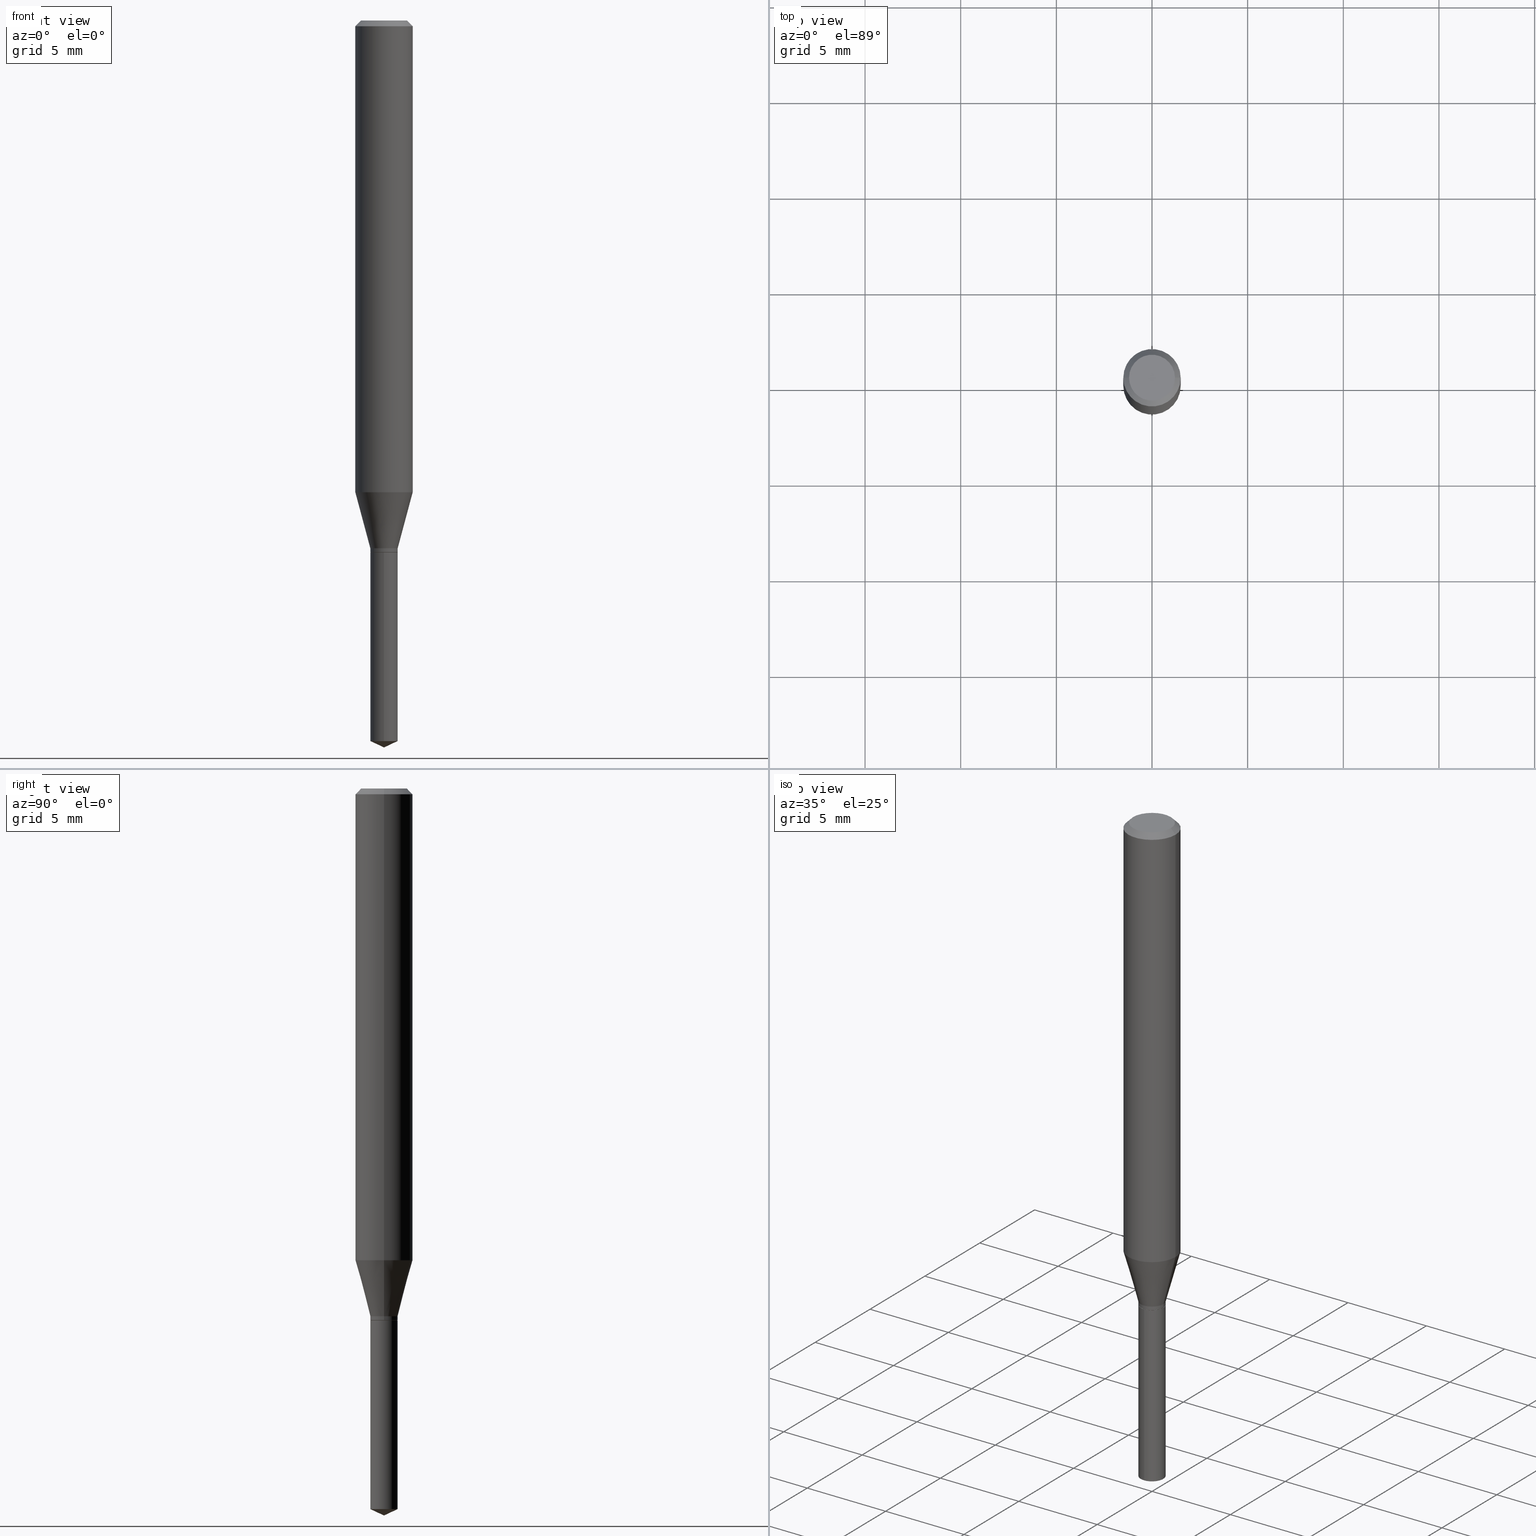
[diagram: canonical four-view strip — front | top / right | iso, engineering-drawing reading convention]
A machine part, canonical four-view strip (front | top / right | iso — engineering-drawing reading convention). The complete STEP part file that produces these views, byte-faithful:
ISO-10303-21;
HEADER;
FILE_DESCRIPTION (( 'STEP AP203' ),
    '1' );
FILE_NAME ('07876.STEP',
    '2024-04-24T05:06:22',
    ( '' ),
    ( '' ),
    'SwSTEP 2.0',
    'SolidWorks 2023',
    '' );
FILE_SCHEMA (( 'CONFIG_CONTROL_DESIGN' ));
ENDSEC;

DATA;
#1 = FACE_OUTER_BOUND ( 'NONE', #385, .T. ) ;
#2 = ORIENTED_EDGE ( 'NONE', *, *, #157, .F. ) ;
#3 = APPROVAL_DATE_TIME ( #406, #96 ) ;
#4 = LINE ( 'NONE', #378, #204 ) ;
#5 = ORIENTED_EDGE ( 'NONE', *, *, #387, .F. ) ;
#6 = CARTESIAN_POINT ( 'NONE',  ( -1.965703993768416296E-16, -0.02815000000000382127, -1.094499999999999806 ) ) ;
#7 = VERTEX_POINT ( 'NONE', #395 ) ;
#8 = CIRCLE ( 'NONE', #301, 0.02815000000000000141 ) ;
#9 = CARTESIAN_POINT ( 'NONE',  ( -0.02764999999999999750, -3.622312031752044209E-15, -1.094500000000000028 ) ) ;
#10 = ORIENTED_EDGE ( 'NONE', *, *, #49, .F. ) ;
#11 = CARTESIAN_POINT ( 'NONE',  ( 2.676565608369631794E-29, -3.821426325363822773E-15, -1.094499999999999806 ) ) ;
#12 = ORIENTED_EDGE ( 'NONE', *, *, #421, .F. ) ;
#13 = CIRCLE ( 'NONE', #294, 0.02815000000000000141 ) ;
#14 = FACE_OUTER_BOUND ( 'NONE', #84, .T. ) ;
#15 = ORIENTED_EDGE ( 'NONE', *, *, #127, .F. ) ;
#16 = ADVANCED_FACE ( 'NONE', ( #169 ), #321, .T. ) ;
#17 = EDGE_LOOP ( 'NONE', ( #115, #308, #153, #80 ) ) ;
#18 = VECTOR ( 'NONE', #484, 39.37007874015748143 ) ;
#19 = PRODUCT_DEFINITION_FORMATION_WITH_SPECIFIED_SOURCE ( 'ANY', '', #394, .NOT_KNOWN. ) ;
#20 = ORIENTED_EDGE ( 'NONE', *, *, #387, .T. ) ;
#21 =( NAMED_UNIT ( * ) PLANE_ANGLE_UNIT ( ) SI_UNIT ( $, .RADIAN. ) );
#22 = EDGE_CURVE ( 'NONE', #424, #7, #210, .T. ) ;
#23 = DIRECTION ( 'NONE',  ( 1.000000000000000000, -6.982962677686265133E-15, 0.000000000000000000 ) ) ;
#24 = DIRECTION ( 'NONE',  ( -2.445468806185136597E-29, 3.491481338843145583E-15, 1.000000000000000000 ) ) ;
#25 = DIRECTION ( 'NONE',  ( 1.000000000000000000, -6.982962677686266711E-15, 4.876176775795935793E-29 ) ) ;
#26 = APPROVAL_STATUS ( 'not_yet_approved' ) ;
#27 = CONICAL_SURFACE ( 'NONE', #309, 84.42940631927488937, 1.134464013796318449 ) ;
#28 = CONICAL_SURFACE ( 'NONE', #448, 0.02815000000000000141, 0.2617993877991500740 ) ;
#29 = CARTESIAN_POINT ( 'NONE',  ( -1.099042290321477455E-29, -9.228311730545623484E-15, -1.094500000000000028 ) ) ;
#30 = PERSON_AND_ORGANIZATION ( #429, #271 ) ;
#31 = CARTESIAN_POINT ( 'NONE',  ( 0.02815000000000000141, -3.988668281494408337E-15, -1.086099999999999843 ) ) ;
#32 = APPROVAL_ROLE ( '' ) ;
#33 = DIRECTION ( 'NONE',  ( 0.2588190451025213501, 1.565188264969621968E-15, 0.9659258262890682012 ) ) ;
#34 = DIRECTION ( 'NONE',  ( -6.982962677686265133E-15, -1.000000000000000000, 4.852305494963167470E-15 ) ) ;
#35 = AXIS2_PLACEMENT_3D ( 'NONE', #364, #219, #487 ) ;
#36 = VECTOR ( 'NONE', #455, 39.37007874015748143 ) ;
#37 = DIRECTION ( 'NONE',  ( -2.445468806185136597E-29, 3.491481338843145583E-15, 1.000000000000000000 ) ) ;
#38 = EDGE_CURVE ( 'NONE', #343, #150, #285, .T. ) ;
#39 = ORIENTED_EDGE ( 'NONE', *, *, #201, .T. ) ;
#40 = DATE_AND_TIME ( #229, #124 ) ;
#41 = FACE_OUTER_BOUND ( 'NONE', #358, .T. ) ;
#42 = EDGE_LOOP ( 'NONE', ( #375, #377, #39, #393 ) ) ;
#43 = DIRECTION ( 'NONE',  ( -6.982962677686267499E-15, -1.000000000000000000, 3.520397390770430993E-15 ) ) ;
#44 = ORIENTED_EDGE ( 'NONE', *, *, #392, .F. ) ;
#45 = CLOSED_SHELL ( 'NONE', ( #16, #173, #481, #63, #99, #477, #278, #164, #60, #194, #141, #89 ) ) ;
#46 = CIRCLE ( 'NONE', #186, 0.02815000000000000141 ) ;
#47 = CARTESIAN_POINT ( 'NONE',  ( 2.676565608369631794E-29, -3.821426325363822773E-15, -1.094499999999999806 ) ) ;
#48 = ORIENTED_EDGE ( 'NONE', *, *, #408, .T. ) ;
#49 = EDGE_CURVE ( 'NONE', #55, #343, #87, .T. ) ;
#50 = PERSON_AND_ORGANIZATION_ROLE ( 'creator' ) ;
#51 = ADVANCED_BREP_SHAPE_REPRESENTATION ( '07876', ( #306, #471, #61 ), #95 ) ;
#52 = ORIENTED_EDGE ( 'NONE', *, *, #22, .F. ) ;
#53 = CARTESIAN_POINT ( 'NONE',  ( 2.888098660104663328E-31, -4.123439461173779030E-17, -0.01181000000000006871 ) ) ;
#54 = DIRECTION ( 'NONE',  ( -2.445468806185136597E-29, 3.491481338843145583E-15, 1.000000000000000000 ) ) ;
#55 = VERTEX_POINT ( 'NONE', #432 ) ;
#56 = EDGE_CURVE ( 'NONE', #208, #234, #250, .T. ) ;
#57 = DIRECTION ( 'NONE',  ( 1.000000000000000000, -6.982962677686265133E-15, 0.000000000000000000 ) ) ;
#58 = DIRECTION ( 'NONE',  ( -2.445470214571802116E-29, 3.491479321953280158E-15, 1.000000000000000000 ) ) ;
#59 = AXIS2_PLACEMENT_3D ( 'NONE', #247, #129, #396 ) ;
#60 = ADVANCED_FACE ( 'NONE', ( #434 ), #333, .T. ) ;
#61 = AXIS2_PLACEMENT_3D ( 'NONE', #384, #134, #136 ) ;
#62 = ORIENTED_EDGE ( 'NONE', *, *, #157, .T. ) ;
#63 = ADVANCED_FACE ( 'NONE', ( #132 ), #172, .T. ) ;
#64 = CYLINDRICAL_SURFACE ( 'NONE', #447, 0.02815000000000000141 ) ;
#65 = APPLICATION_PROTOCOL_DEFINITION ( 'international standard', 'config_control_design', 1994, #473 ) ;
#66 = DIRECTION ( 'NONE',  ( -2.445468806185136597E-29, 3.491481338843145583E-15, 1.000000000000000000 ) ) ;
#67 = EDGE_LOOP ( 'NONE', ( #2, #317, #383, #454 ) ) ;
#68 = PERSON_AND_ORGANIZATION ( #429, #271 ) ;
#69 = CIRCLE ( 'NONE', #414, 0.02815000000000000141 ) ;
#70 = LOCAL_TIME ( 1, 6, 22.00000000000000000, #349 ) ;
#71 = FACE_OUTER_BOUND ( 'NONE', #202, .T. ) ;
#72 = ADVANCED_FACE ( 'NONE', ( #289 ), #435, .T. ) ;
#73 = CARTESIAN_POINT ( 'NONE',  ( -0.05905000000000006077, 4.195754854663395916E-16, -2.904631170795524694E-30 ) ) ;
#74 = CARTESIAN_POINT ( 'NONE',  ( 0.04724000000000000421, -3.852183633974369345E-16, -3.380025165621689721E-19 ) ) ;
#75 = CALENDAR_DATE ( 2024, 24, 4 ) ;
#76 = ADVANCED_FACE ( 'NONE', ( #14 ), #209, .F. ) ;
#77 = CARTESIAN_POINT ( 'NONE',  ( -9.261968845786000133E-28, 1.322362114038720264E-13, 37.87397874015748300 ) ) ;
#78 = AXIS2_PLACEMENT_3D ( 'NONE', #388, #58, #352 ) ;
#79 = CC_DESIGN_APPROVAL ( #96, ( #19 ) ) ;
#80 = ORIENTED_EDGE ( 'NONE', *, *, #119, .F. ) ;
#81 = CYLINDRICAL_SURFACE ( 'NONE', #138, 0.02815000000000000141 ) ;
#82 = ORIENTED_EDGE ( 'NONE', *, *, #38, .F. ) ;
#83 = DIRECTION ( 'NONE',  ( -2.445470214571802116E-29, 3.491479321953280158E-15, 1.000000000000000000 ) ) ;
#84 = EDGE_LOOP ( 'NONE', ( #346, #130 ) ) ;
#85 = CARTESIAN_POINT ( 'NONE',  ( 2.656023670397676877E-29, -3.792097882117539936E-15, -1.086099999999999843 ) ) ;
#86 = ORIENTED_EDGE ( 'NONE', *, *, #270, .T. ) ;
#87 = CIRCLE ( 'NONE', #328, 0.02815000000000000141 ) ;
#88 = VECTOR ( 'NONE', #167, 39.37007874015748143 ) ;
#89 = ADVANCED_FACE ( 'NONE', ( #441 ), #112, .T. ) ;
#90 = APPROVAL_DATE_TIME ( #426, #469 ) ;
#91 = VERTEX_POINT ( 'NONE', #105 ) ;
#92 = FACE_OUTER_BOUND ( 'NONE', #463, .T. ) ;
#93 = ORIENTED_EDGE ( 'NONE', *, *, #319, .T. ) ;
#94 = ORIENTED_EDGE ( 'NONE', *, *, #239, .F. ) ;
#95 =( GEOMETRIC_REPRESENTATION_CONTEXT ( 3 ) GLOBAL_UNCERTAINTY_ASSIGNED_CONTEXT ( ( #168 ) ) GLOBAL_UNIT_ASSIGNED_CONTEXT ( ( #467, #21, #326 ) ) REPRESENTATION_CONTEXT ( 'NONE', 'WORKASPACE' ) );
#96 = APPROVAL ( #449, 'UNSPECIFIED' ) ;
#97 = CARTESIAN_POINT ( 'NONE',  ( 2.888098660104663328E-31, -4.123439461173779030E-17, -0.01181000000000006871 ) ) ;
#98 = ORIENTED_EDGE ( 'NONE', *, *, #270, .F. ) ;
#99 = ADVANCED_FACE ( 'NONE', ( #177 ), #64, .T. ) ;
#100 = CYLINDRICAL_SURFACE ( 'NONE', #373, 0.02815000000000000141 ) ;
#101 = EDGE_LOOP ( 'NONE', ( #133, #282 ) ) ;
#102 = CC_DESIGN_APPROVAL ( #469, ( #216 ) ) ;
#103 = DIRECTION ( 'NONE',  ( 1.000000000000000000, -6.982962677686265133E-15, 0.000000000000000000 ) ) ;
#104 = CARTESIAN_POINT ( 'NONE',  ( 2.000177801165045246E-16, 0.02814999999999618502, -1.094500000000000028 ) ) ;
#105 = CARTESIAN_POINT ( 'NONE',  ( -1.965703993768321386E-16, -0.02815000000000518129, -1.482973439422936801 ) ) ;
#106 = DIRECTION ( 'NONE',  ( -2.438088387897960049E-29, 3.491481338843145188E-15, 1.000000000000000000 ) ) ;
#107 = CARTESIAN_POINT ( 'NONE',  ( 2.676565608369632355E-29, -3.821426325363822773E-15, -1.094500000000000028 ) ) ;
#108 = SECURITY_CLASSIFICATION_LEVEL ( 'unclassified' ) ;
#109 = FACE_OUTER_BOUND ( 'NONE', #101, .T. ) ;
#110 = CARTESIAN_POINT ( 'NONE',  ( -0.02815000000000000141, -3.605871453289501947E-15, -1.093999999999999861 ) ) ;
#111 = ORIENTED_EDGE ( 'NONE', *, *, #421, .T. ) ;
#112 = CONICAL_SURFACE ( 'NONE', #35, 0.02764999999999999750, 0.7853981633972775267 ) ;
#113 = CARTESIAN_POINT ( 'NONE',  ( -0.05904999999999999832, -1.295771193057071220E-15, -0.01181000000000006871 ) ) ;
#114 = LOCAL_TIME ( 1, 6, 22.00000000000000000, #334 ) ;
#115 = ORIENTED_EDGE ( 'NONE', *, *, #49, .T. ) ;
#116 = DIRECTION ( 'NONE',  ( -2.445470214571802116E-29, 3.491479321953280158E-15, 1.000000000000000000 ) ) ;
#117 = ORIENTED_EDGE ( 'NONE', *, *, #353, .F. ) ;
#118 = CARTESIAN_POINT ( 'NONE',  ( 3.626565833630687571E-29, -5.177773306237076602E-15, -1.482973439422936801 ) ) ;
#119 = EDGE_CURVE ( 'NONE', #55, #468, #444, .T. ) ;
#120 = ORIENTED_EDGE ( 'NONE', *, *, #183, .F. ) ;
#121 = CARTESIAN_POINT ( 'NONE',  ( -0.04724000000000000421, 3.504923541997677355E-16, -3.380025165670481712E-19 ) ) ;
#122 = ORIENTED_EDGE ( 'NONE', *, *, #428, .T. ) ;
#123 = AXIS2_PLACEMENT_3D ( 'NONE', #330, #325, #331 ) ;
#124 = LOCAL_TIME ( 1, 6, 22.00000000000000000, #367 ) ;
#125 = CALENDAR_DATE ( 2024, 24, 4 ) ;
#126 = CARTESIAN_POINT ( 'NONE',  ( -0.02815000000000000141, -3.592080102001071674E-15, -1.086099999999999843 ) ) ;
#127 = EDGE_CURVE ( 'NONE', #287, #190, #425, .T. ) ;
#128 = DIRECTION ( 'NONE',  ( 1.000000000000000000, -6.982962677686266711E-15, 0.000000000000000000 ) ) ;
#129 = DIRECTION ( 'NONE',  ( -2.445468806185136597E-29, 3.491481338843145583E-15, 1.000000000000000000 ) ) ;
#130 = ORIENTED_EDGE ( 'NONE', *, *, #337, .T. ) ;
#131 = EDGE_CURVE ( 'NONE', #468, #150, #235, .T. ) ;
#132 = FACE_OUTER_BOUND ( 'NONE', #17, .T. ) ;
#133 = ORIENTED_EDGE ( 'NONE', *, *, #451, .T. ) ;
#134 = DIRECTION ( 'NONE',  ( 0.000000000000000000, 0.000000000000000000, 1.000000000000000000 ) ) ;
#135 = CARTESIAN_POINT ( 'NONE',  ( 2.656023670397676877E-29, -3.792097882117539936E-15, -1.086099999999999843 ) ) ;
#136 = DIRECTION ( 'NONE',  ( 1.000000000000000000, 0.000000000000000000, 0.000000000000000000 ) ) ;
#137 = AXIS2_PLACEMENT_3D ( 'NONE', #139, #66, #25 ) ;
#138 = AXIS2_PLACEMENT_3D ( 'NONE', #47, #460, #34 ) ;
#139 = CARTESIAN_POINT ( 'NONE',  ( 0.000000000000000000, 0.000000000000000000, 0.000000000000000000 ) ) ;
#140 = CALENDAR_DATE ( 2024, 24, 4 ) ;
#141 = ADVANCED_FACE ( 'NONE', ( #175 ), #146, .F. ) ;
#142 = DIRECTION ( 'NONE',  ( -2.445468806185136877E-29, 3.491481338843145188E-15, 1.000000000000000000 ) ) ;
#143 = CARTESIAN_POINT ( 'NONE',  ( 2.676565608369631794E-29, -3.821426325363822773E-15, -1.094499999999999806 ) ) ;
#144 = VECTOR ( 'NONE', #142, 39.37007874015748143 ) ;
#145 = VECTOR ( 'NONE', #195, 39.37007874015748143 ) ;
#146 = PLANE ( 'NONE',  #357 ) ;
#147 = EDGE_CURVE ( 'NONE', #339, #424, #213, .T. ) ;
#148 = DATE_AND_TIME ( #125, #70 ) ;
#149 = DIRECTION ( 'NONE',  ( -2.445468806185136597E-29, 3.491481338843145583E-15, 1.000000000000000000 ) ) ;
#150 = VERTEX_POINT ( 'NONE', #407 ) ;
#151 = CC_DESIGN_PERSON_AND_ORGANIZATION_ASSIGNMENT ( #488, #221, ( #226 ) ) ;
#152 = LINE ( 'NONE', #307, #36 ) ;
#153 = ORIENTED_EDGE ( 'NONE', *, *, #131, .F. ) ;
#154 = CARTESIAN_POINT ( 'NONE',  ( -0.02764999999999999750, -3.624961258926155410E-15, -1.094500000000000028 ) ) ;
#155 = APPROVAL_PERSON_ORGANIZATION ( #30, #96, #32 ) ;
#156 = ORIENTED_EDGE ( 'NONE', *, *, #56, .T. ) ;
#157 = EDGE_CURVE ( 'NONE', #322, #456, #362, .T. ) ;
#158 = DIRECTION ( 'NONE',  ( -6.982962677686267499E-15, -1.000000000000000000, 3.520397390770430993E-15 ) ) ;
#159 = ORIENTED_EDGE ( 'NONE', *, *, #147, .T. ) ;
#160 = DIRECTION ( 'NONE',  ( -2.445470214571802116E-29, 3.491479321953280158E-15, 1.000000000000000000 ) ) ;
#161 = ORIENTED_EDGE ( 'NONE', *, *, #181, .T. ) ;
#162 = CARTESIAN_POINT ( 'NONE',  ( 2.888098660104663328E-31, -4.123439461173779030E-17, -0.01181000000000006871 ) ) ;
#163 = VECTOR ( 'NONE', #265, 39.37007874015748143 ) ;
#164 = ADVANCED_FACE ( 'NONE', ( #180 ), #302, .T. ) ;
#165 = CIRCLE ( 'NONE', #323, 0.04724000000000000421 ) ;
#166 = APPLICATION_CONTEXT ( 'configuration controlled 3d designs of mechanical parts and assemblies' ) ;
#167 = DIRECTION ( 'NONE',  ( -2.445468806185136877E-29, 3.491481338843145188E-15, 1.000000000000000000 ) ) ;
#168 = UNCERTAINTY_MEASURE_WITH_UNIT (LENGTH_MEASURE( 1.000000000000000082E-05 ), #467, 'distance_accuracy_value', 'NONE');
#169 = FACE_OUTER_BOUND ( 'NONE', #315, .T. ) ;
#170 = CARTESIAN_POINT ( 'NONE',  ( 2.675342873966538993E-29, -3.819680584694400481E-15, -1.093999999999999861 ) ) ;
#171 = ORIENTED_EDGE ( 'NONE', *, *, #356, .F. ) ;
#172 = CONICAL_SURFACE ( 'NONE', #365, 0.02815000000000000141, 0.2617993877991500740 ) ;
#173 = ADVANCED_FACE ( 'NONE', ( #71 ), #279, .T. ) ;
#174 = DIRECTION ( 'NONE',  ( 2.445468806185136597E-29, -3.491481338843145583E-15, -1.000000000000000000 ) ) ;
#175 = FACE_OUTER_BOUND ( 'NONE', #199, .T. ) ;
#176 =( LENGTH_UNIT ( ) NAMED_UNIT ( * ) SI_UNIT ( $, .METRE. ) );
#177 = FACE_OUTER_BOUND ( 'NONE', #304, .T. ) ;
#178 = APPROVAL_ROLE ( '' ) ;
#179 = CIRCLE ( 'NONE', #433, 0.05904999999999999832 ) ;
#180 = FACE_OUTER_BOUND ( 'NONE', #238, .T. ) ;
#181 = EDGE_CURVE ( 'NONE', #190, #287, #389, .T. ) ;
#182 = DIRECTION ( 'NONE',  ( 1.000000000000000000, -6.982962677686266711E-15, 0.000000000000000000 ) ) ;
#183 = EDGE_CURVE ( 'NONE', #150, #424, #486, .T. ) ;
#184 = DIRECTION ( 'NONE',  ( 2.438088387897960049E-29, -3.491481338843145188E-15, -1.000000000000000000 ) ) ;
#185 = AXIS2_PLACEMENT_3D ( 'NONE', #368, #184, #332 ) ;
#186 = AXIS2_PLACEMENT_3D ( 'NONE', #11, #374, #458 ) ;
#187 = CC_DESIGN_PERSON_AND_ORGANIZATION_ASSIGNMENT ( #452, #258, ( #19 ) ) ;
#188 = CARTESIAN_POINT ( 'NONE',  ( 2.374011302957737250E-29, -3.389458962435085669E-15, -0.9707796300461214445 ) ) ;
#189 = DIRECTION ( 'NONE',  ( 1.000000000000000000, -6.982962677686266711E-15, 4.876185090822587894E-29 ) ) ;
#190 = VERTEX_POINT ( 'NONE', #450 ) ;
#191 = APPROVAL_DATE_TIME ( #40, #242 ) ;
#192 = DIRECTION ( 'NONE',  ( 1.000000000000000000, -6.982962677686265133E-15, 0.000000000000000000 ) ) ;
#193 = ORIENTED_EDGE ( 'NONE', *, *, #253, .T. ) ;
#194 = ADVANCED_FACE ( 'NONE', ( #109 ), #222, .F. ) ;
#195 = DIRECTION ( 'NONE',  ( -0.7071067811864267805, 7.493145998869918709E-15, 0.7071067811866682540 ) ) ;
#196 = LOCAL_TIME ( 1, 6, 22.00000000000000000, #341 ) ;
#197 = ORIENTED_EDGE ( 'NONE', *, *, #183, .T. ) ;
#198 = LINE ( 'NONE', #230, #439 ) ;
#199 = EDGE_LOOP ( 'NONE', ( #273, #15 ) ) ;
#200 = FACE_OUTER_BOUND ( 'NONE', #459, .T. ) ;
#201 = EDGE_CURVE ( 'NONE', #190, #208, #490, .T. ) ;
#202 = EDGE_LOOP ( 'NONE', ( #44, #86, #205, #275 ) ) ;
#203 = LENGTH_MEASURE_WITH_UNIT ( LENGTH_MEASURE( 0.02539999999999999897 ), #176 );
#204 = VECTOR ( 'NONE', #462, 39.37007874015748854 ) ;
#205 = ORIENTED_EDGE ( 'NONE', *, *, #464, .T. ) ;
#206 = CIRCLE ( 'NONE', #413, 0.02815000000000000141 ) ;
#207 = ORIENTED_EDGE ( 'NONE', *, *, #220, .F. ) ;
#208 = VERTEX_POINT ( 'NONE', #360 ) ;
#209 = PLANE ( 'NONE',  #465 ) ;
#210 = CIRCLE ( 'NONE', #371, 0.05904999999999999832 ) ;
#211 = CARTESIAN_POINT ( 'NONE',  ( 0.000000000000000000, 0.000000000000000000, 0.000000000000000000 ) ) ;
#212 = CARTESIAN_POINT ( 'NONE',  ( -1.965703993768416296E-16, -0.02815000000000382127, -1.094499999999999806 ) ) ;
#213 = LINE ( 'NONE', #263, #163 ) ;
#214 = PERSON_AND_ORGANIZATION ( #429, #271 ) ;
#215 = DIRECTION ( 'NONE',  ( -2.445468806185136597E-29, 3.491481338843145583E-15, 1.000000000000000000 ) ) ;
#216 = PRODUCT_DEFINITION ( 'UNKNOWN', '', #19, #418 ) ;
#217 = CALENDAR_DATE ( 2024, 24, 4 ) ;
#218 = CIRCLE ( 'NONE', #457, 0.02815000000000000141 ) ;
#219 = DIRECTION ( 'NONE',  ( -2.445468806185136597E-29, 3.491481338843145583E-15, 1.000000000000000000 ) ) ;
#220 = EDGE_CURVE ( 'NONE', #343, #55, #69, .T. ) ;
#221 = PERSON_AND_ORGANIZATION_ROLE ( 'classification_officer' ) ;
#222 = PLANE ( 'NONE',  #185 ) ;
#223 = DIRECTION ( 'NONE',  ( -6.982962677686265133E-15, -1.000000000000000000, 0.000000000000000000 ) ) ;
#224 = PERSON_AND_ORGANIZATION ( #429, #271 ) ;
#225 = VECTOR ( 'NONE', #409, 39.37007874015748143 ) ;
#226 = SECURITY_CLASSIFICATION ( '', '', #108 ) ;
#227 = CARTESIAN_POINT ( 'NONE',  ( 8.265746106709734507E-48, -1.180129479067563789E-33, -3.380025165646692144E-19 ) ) ;
#228 = ORIENTED_EDGE ( 'NONE', *, *, #22, .T. ) ;
#229 = CALENDAR_DATE ( 2024, 24, 4 ) ;
#230 = CARTESIAN_POINT ( 'NONE',  ( 3.658664905062460986E-29, -5.223606628546217219E-15, -1.496099999999999985 ) ) ;
#231 = EDGE_CURVE ( 'NONE', #234, #208, #13, .T. ) ;
#232 = ORIENTED_EDGE ( 'NONE', *, *, #340, .F. ) ;
#233 = CARTESIAN_POINT ( 'NONE',  ( -9.261968845786000133E-28, 1.322362114038720264E-13, 37.87397874015748300 ) ) ;
#234 = VERTEX_POINT ( 'NONE', #110 ) ;
#235 = CIRCLE ( 'NONE', #380, 0.05905000000000011628 ) ;
#236 = CARTESIAN_POINT ( 'NONE',  ( 3.626565833630687571E-29, -5.177773306237076602E-15, -1.482973439422936801 ) ) ;
#237 = APPROVAL_PERSON_ORGANIZATION ( #214, #469, #178 ) ;
#238 = EDGE_LOOP ( 'NONE', ( #120, #241, #111, #52 ) ) ;
#239 = EDGE_CURVE ( 'NONE', #322, #91, #206, .T. ) ;
#240 = PERSON_AND_ORGANIZATION ( #429, #271 ) ;
#241 = ORIENTED_EDGE ( 'NONE', *, *, #369, .T. ) ;
#242 = APPROVAL ( #305, 'UNSPECIFIED' ) ;
#243 = DIRECTION ( 'NONE',  ( -2.445468806185136597E-29, 3.491481338843145583E-15, 1.000000000000000000 ) ) ;
#244 = VECTOR ( 'NONE', #280, 39.37007874015748143 ) ;
#245 = VERTEX_POINT ( 'NONE', #74 ) ;
#246 = DIRECTION ( 'NONE',  ( 1.000000000000000000, -6.982962677686266711E-15, 0.000000000000000000 ) ) ;
#247 = CARTESIAN_POINT ( 'NONE',  ( 2.676565608369632355E-29, -3.821426325363822773E-15, -1.094500000000000028 ) ) ;
#248 = DIRECTION ( 'NONE',  ( -2.445468806185136597E-29, 3.491481338843145583E-15, 1.000000000000000000 ) ) ;
#249 = ORIENTED_EDGE ( 'NONE', *, *, #253, .F. ) ;
#250 = CIRCLE ( 'NONE', #260, 0.02815000000000000141 ) ;
#251 = VECTOR ( 'NONE', #370, 39.37007874015748143 ) ;
#252 = LINE ( 'NONE', #436, #88 ) ;
#253 = EDGE_CURVE ( 'NONE', #478, #322, #4, .T. ) ;
#254 = CARTESIAN_POINT ( 'NONE',  ( 2.675342873966538993E-29, -3.819680584694400481E-15, -1.093999999999999861 ) ) ;
#255 = PERSON_AND_ORGANIZATION_ROLE ( 'design_owner' ) ;
#256 = CC_DESIGN_PERSON_AND_ORGANIZATION_ASSIGNMENT ( #68, #268, ( #19 ) ) ;
#257 = DIRECTION ( 'NONE',  ( -2.445468806185136597E-29, 3.491481338843145583E-15, 1.000000000000000000 ) ) ;
#258 = PERSON_AND_ORGANIZATION_ROLE ( 'design_supplier' ) ;
#259 = DIRECTION ( 'NONE',  ( -2.445468806185136597E-29, 3.491481338843145583E-15, 1.000000000000000000 ) ) ;
#260 = AXIS2_PLACEMENT_3D ( 'NONE', #170, #320, #474 ) ;
#261 = APPROVAL_ROLE ( '' ) ;
#262 = AXIS2_PLACEMENT_3D ( 'NONE', #227, #37, #189 ) ;
#263 = CARTESIAN_POINT ( 'NONE',  ( -0.05904999999999999832, 3.711095515056362547E-16, -0.01181000000000006871 ) ) ;
#264 = ADVANCED_FACE ( 'NONE', ( #382 ), #27, .T. ) ;
#265 = DIRECTION ( 'NONE',  ( -0.7071067811865453523, 2.468850131082234184E-15, -0.7071067811865496822 ) ) ;
#266 = DIRECTION ( 'NONE',  ( -2.445470214571802116E-29, 3.491479321953280158E-15, 1.000000000000000000 ) ) ;
#267 = ORIENTED_EDGE ( 'NONE', *, *, #340, .T. ) ;
#268 = PERSON_AND_ORGANIZATION_ROLE ( 'creator' ) ;
#269 = VECTOR ( 'NONE', #291, 39.37007874015747433 ) ;
#270 = EDGE_CURVE ( 'NONE', #245, #7, #312, .T. ) ;
#271 = ORGANIZATION ( 'UNSPECIFIED', 'UNSPECIFIED', '' ) ;
#272 = DIRECTION ( 'NONE',  ( -6.982962677686265133E-15, -1.000000000000000000, 0.000000000000000000 ) ) ;
#273 = ORIENTED_EDGE ( 'NONE', *, *, #181, .F. ) ;
#274 = LINE ( 'NONE', #6, #251 ) ;
#275 = ORIENTED_EDGE ( 'NONE', *, *, #147, .F. ) ;
#276 = FACE_OUTER_BOUND ( 'NONE', #318, .T. ) ;
#277 = ORIENTED_EDGE ( 'NONE', *, *, #319, .F. ) ;
#278 = ADVANCED_FACE ( 'NONE', ( #1 ), #28, .T. ) ;
#279 = CONICAL_SURFACE ( 'NONE', #123, 0.05904999999999999832, 0.7853981633974452814 ) ;
#280 = DIRECTION ( 'NONE',  ( 0.7071067811865453523, -7.319954787623248157E-15, -0.7071067811865496822 ) ) ;
#281 = VECTOR ( 'NONE', #314, 39.37007874015748143 ) ;
#282 = ORIENTED_EDGE ( 'NONE', *, *, #392, .T. ) ;
#283 = CC_DESIGN_PERSON_AND_ORGANIZATION_ASSIGNMENT ( #296, #255, ( #394 ) ) ;
#284 = CARTESIAN_POINT ( 'NONE',  ( 2.656023670397676877E-29, -3.792097882117539936E-15, -1.086099999999999843 ) ) ;
#285 = LINE ( 'NONE', #126, #269 ) ;
#286 = ADVANCED_FACE ( 'NONE', ( #41 ), #81, .T. ) ;
#287 = VERTEX_POINT ( 'NONE', #9 ) ;
#288 = AXIS2_PLACEMENT_3D ( 'NONE', #188, #149, #303 ) ;
#289 = FACE_OUTER_BOUND ( 'NONE', #67, .T. ) ;
#290 = CARTESIAN_POINT ( 'NONE',  ( 3.658667988020872822E-29, -5.223602213574301462E-15, -1.496099999999999985 ) ) ;
#291 = DIRECTION ( 'NONE',  ( -0.2588190451025213501, 5.211531920934551042E-15, 0.9659258262890682012 ) ) ;
#292 = MECHANICAL_CONTEXT ( 'NONE', #166, 'mechanical' ) ;
#293 = DIRECTION ( 'NONE',  ( -2.445468806185136597E-29, 3.491481338843145583E-15, 1.000000000000000000 ) ) ;
#294 = AXIS2_PLACEMENT_3D ( 'NONE', #254, #401, #417 ) ;
#295 = CC_DESIGN_DATE_AND_TIME_ASSIGNMENT ( #410, #415, ( #226 ) ) ;
#296 = PERSON_AND_ORGANIZATION ( #429, #271 ) ;
#297 = DIRECTION ( 'NONE',  ( 2.445470214571801836E-29, -3.491479321953280158E-15, -1.000000000000000000 ) ) ;
#298 = DIRECTION ( 'NONE',  ( 6.982962677686265922E-15, 1.000000000000000000, -3.491479321953280158E-15 ) ) ;
#299 = ADVANCED_FACE ( 'NONE', ( #276 ), #329, .T. ) ;
#300 = DIRECTION ( 'NONE',  ( 1.000000000000000000, -6.982962677686265133E-15, 0.000000000000000000 ) ) ;
#301 = AXIS2_PLACEMENT_3D ( 'NONE', #376, #266, #423 ) ;
#302 = CYLINDRICAL_SURFACE ( 'NONE', #137, 0.05905000000000006077 ) ;
#303 = DIRECTION ( 'NONE',  ( 1.000000000000000000, -6.982962677686266711E-15, 0.000000000000000000 ) ) ;
#304 = EDGE_LOOP ( 'NONE', ( #156, #20, #10, #427 ) ) ;
#305 = APPROVAL_STATUS ( 'not_yet_approved' ) ;
#306 = MANIFOLD_SOLID_BREP ( 'Body-Move/Copy2[1]', #475 ) ;
#307 = CARTESIAN_POINT ( 'NONE',  ( 0.05905000000000006077, -4.123439461173744764E-16, 2.879382386107503023E-30 ) ) ;
#308 = ORIENTED_EDGE ( 'NONE', *, *, #38, .T. ) ;
#309 = AXIS2_PLACEMENT_3D ( 'NONE', #233, #342, #158 ) ;
#310 = CARTESIAN_POINT ( 'NONE',  ( 2.000177801165044999E-16, 0.02814999999999482153, -1.482973439422936801 ) ) ;
#311 = ORIENTED_EDGE ( 'NONE', *, *, #119, .T. ) ;
#312 = LINE ( 'NONE', #336, #244 ) ;
#313 = ORIENTED_EDGE ( 'NONE', *, *, #201, .F. ) ;
#314 = DIRECTION ( 'NONE',  ( -2.445468806185136877E-29, 3.491481338843145188E-15, 1.000000000000000000 ) ) ;
#315 = EDGE_LOOP ( 'NONE', ( #161, #48, #472, #313 ) ) ;
#316 = AXIS2_PLACEMENT_3D ( 'NONE', #107, #259, #300 ) ;
#317 = ORIENTED_EDGE ( 'NONE', *, *, #239, .T. ) ;
#318 = EDGE_LOOP ( 'NONE', ( #249, #267, #94 ) ) ;
#319 = EDGE_CURVE ( 'NONE', #91, #322, #218, .T. ) ;
#320 = DIRECTION ( 'NONE',  ( -2.445468806185136597E-29, 3.491481338843145583E-15, 1.000000000000000000 ) ) ;
#321 = CONICAL_SURFACE ( 'NONE', #59, 0.02764999999999999750, 0.7853981633972775267 ) ;
#322 = VERTEX_POINT ( 'NONE', #310 ) ;
#323 = AXIS2_PLACEMENT_3D ( 'NONE', #386, #350, #363 ) ;
#324 = DIRECTION ( 'NONE',  ( -2.445468806185136597E-29, 3.491481338843145583E-15, 1.000000000000000000 ) ) ;
#325 = DIRECTION ( 'NONE',  ( 2.445468806185136597E-29, -3.491481338843145583E-15, -1.000000000000000000 ) ) ;
#326 =( NAMED_UNIT ( * ) SI_UNIT ( $, .STERADIAN. ) SOLID_ANGLE_UNIT ( ) );
#327 = DIRECTION ( 'NONE',  ( -2.445468806185136597E-29, 3.491481338843145583E-15, 1.000000000000000000 ) ) ;
#328 = AXIS2_PLACEMENT_3D ( 'NONE', #284, #324, #355 ) ;
#329 = CONICAL_SURFACE ( 'NONE', #466, 84.42940631927488937, 1.134464013796318449 ) ;
#330 = CARTESIAN_POINT ( 'NONE',  ( 2.888098660104663328E-31, -4.123439461173779030E-17, -0.01181000000000006871 ) ) ;
#331 = DIRECTION ( 'NONE',  ( -1.000000000000000000, 6.982962677686266711E-15, 0.000000000000000000 ) ) ;
#332 = DIRECTION ( 'NONE',  ( -1.000000000000000000, 6.982962677686265922E-15, -4.876176775795935793E-29 ) ) ;
#333 = CONICAL_SURFACE ( 'NONE', #483, 0.05904999999999999832, 0.7853981633974452814 ) ;
#334 = COORDINATED_UNIVERSAL_TIME_OFFSET ( 5, 0, .BEHIND. ) ;
#335 = LOCAL_TIME ( 1, 6, 22.00000000000000000, #485 ) ;
#336 = CARTESIAN_POINT ( 'NONE',  ( 0.05904999999999999832, -4.463468013801466955E-16, -0.01181000000000006871 ) ) ;
#337 = EDGE_CURVE ( 'NONE', #456, #442, #8, .T. ) ;
#338 = LINE ( 'NONE', #154, #145 ) ;
#339 = VERTEX_POINT ( 'NONE', #121 ) ;
#340 = EDGE_CURVE ( 'NONE', #478, #91, #198, .T. ) ;
#341 = COORDINATED_UNIVERSAL_TIME_OFFSET ( 5, 0, .BEHIND. ) ;
#342 = DIRECTION ( 'NONE',  ( -2.445470214571802116E-29, 3.491479321953280158E-15, 1.000000000000000000 ) ) ;
#343 = VERTEX_POINT ( 'NONE', #347 ) ;
#344 = CC_DESIGN_APPROVAL ( #242, ( #226 ) ) ;
#345 = DIRECTION ( 'NONE',  ( -2.445468806185136597E-29, 3.491481338843145583E-15, 1.000000000000000000 ) ) ;
#346 = ORIENTED_EDGE ( 'NONE', *, *, #353, .T. ) ;
#347 = CARTESIAN_POINT ( 'NONE',  ( -0.02815000000000000141, -3.605871453289501947E-15, -1.086099999999999843 ) ) ;
#348 = ORIENTED_EDGE ( 'NONE', *, *, #131, .T. ) ;
#349 = COORDINATED_UNIVERSAL_TIME_OFFSET ( 5, 0, .BEHIND. ) ;
#350 = DIRECTION ( 'NONE',  ( -2.445468806185136597E-29, 3.491481338843145583E-15, 1.000000000000000000 ) ) ;
#351 = CC_DESIGN_SECURITY_CLASSIFICATION ( #226, ( #19 ) ) ;
#352 = DIRECTION ( 'NONE',  ( -6.982962677686265133E-15, -1.000000000000000000, 4.852305494963167470E-15 ) ) ;
#353 = EDGE_CURVE ( 'NONE', #442, #456, #46, .T. ) ;
#354 = ORIENTED_EDGE ( 'NONE', *, *, #464, .F. ) ;
#355 = DIRECTION ( 'NONE',  ( 1.000000000000000000, -6.982962677686265133E-15, 0.000000000000000000 ) ) ;
#356 = EDGE_CURVE ( 'NONE', #91, #442, #274, .T. ) ;
#357 = AXIS2_PLACEMENT_3D ( 'NONE', #29, #106, #446 ) ;
#358 = EDGE_LOOP ( 'NONE', ( #93, #62, #117, #171 ) ) ;
#359 = CC_DESIGN_PERSON_AND_ORGANIZATION_ASSIGNMENT ( #240, #50, ( #216 ) ) ;
#360 = CARTESIAN_POINT ( 'NONE',  ( 0.02815000000000000141, -4.016250984071268882E-15, -1.093999999999999861 ) ) ;
#361 = CYLINDRICAL_SURFACE ( 'NONE', #391, 0.05905000000000006077 ) ;
#362 = LINE ( 'NONE', #366, #18 ) ;
#363 = DIRECTION ( 'NONE',  ( 1.000000000000000000, -6.982962677686266711E-15, 4.876185090822587894E-29 ) ) ;
#364 = CARTESIAN_POINT ( 'NONE',  ( 2.676565608369632355E-29, -3.821426325363822773E-15, -1.094500000000000028 ) ) ;
#365 = AXIS2_PLACEMENT_3D ( 'NONE', #431, #243, #57 ) ;
#366 = CARTESIAN_POINT ( 'NONE',  ( 2.000177801164949104E-16, 0.02814999999999617808, -1.094500000000000028 ) ) ;
#367 = COORDINATED_UNIVERSAL_TIME_OFFSET ( 5, 0, .BEHIND. ) ;
#368 = CARTESIAN_POINT ( 'NONE',  ( 4.132873053354867254E-48, -5.900647395337818946E-34, -1.690012582823346072E-19 ) ) ;
#369 = EDGE_CURVE ( 'NONE', #150, #468, #416, .T. ) ;
#370 = DIRECTION ( 'NONE',  ( -2.445470214571802396E-29, 3.491479321953280158E-15, 1.000000000000000000 ) ) ;
#371 = AXIS2_PLACEMENT_3D ( 'NONE', #162, #54, #246 ) ;
#372 = DATE_TIME_ROLE ( 'creation_date' ) ;
#373 = AXIS2_PLACEMENT_3D ( 'NONE', #397, #430, #440 ) ;
#374 = DIRECTION ( 'NONE',  ( -2.445470214571802116E-29, 3.491479321953280158E-15, 1.000000000000000000 ) ) ;
#375 = ORIENTED_EDGE ( 'NONE', *, *, #408, .F. ) ;
#376 = CARTESIAN_POINT ( 'NONE',  ( 2.676565608369631794E-29, -3.821426325363822773E-15, -1.094499999999999806 ) ) ;
#377 = ORIENTED_EDGE ( 'NONE', *, *, #127, .T. ) ;
#378 = CARTESIAN_POINT ( 'NONE',  ( 3.658668015054778287E-29, -5.223602213574301462E-15, -1.496099999999999985 ) ) ;
#379 = EDGE_LOOP ( 'NONE', ( #232, #193, #277 ) ) ;
#380 = AXIS2_PLACEMENT_3D ( 'NONE', #403, #327, #182 ) ;
#381 = CIRCLE ( 'NONE', #262, 0.04724000000000000421 ) ;
#382 = FACE_OUTER_BOUND ( 'NONE', #379, .T. ) ;
#383 = ORIENTED_EDGE ( 'NONE', *, *, #356, .T. ) ;
#384 = CARTESIAN_POINT ( 'NONE',  ( 0.000000000000000000, 0.000000000000000000, 0.000000000000000000 ) ) ;
#385 = EDGE_LOOP ( 'NONE', ( #82, #399, #311, #422 ) ) ;
#386 = CARTESIAN_POINT ( 'NONE',  ( 8.265746106709734507E-48, -1.180129479067563789E-33, -3.380025165646692144E-19 ) ) ;
#387 = EDGE_CURVE ( 'NONE', #234, #343, #420, .T. ) ;
#388 = CARTESIAN_POINT ( 'NONE',  ( 2.676565608369631794E-29, -3.821426325363822773E-15, -1.094499999999999806 ) ) ;
#389 = CIRCLE ( 'NONE', #398, 0.02764999999999999750 ) ;
#390 = DIMENSIONAL_EXPONENTS ( 1.000000000000000000, 0.000000000000000000, 0.000000000000000000, 0.000000000000000000, 0.000000000000000000, 0.000000000000000000, 0.000000000000000000 ) ;
#391 = AXIS2_PLACEMENT_3D ( 'NONE', #402, #24, #400 ) ;
#392 = EDGE_CURVE ( 'NONE', #245, #339, #381, .T. ) ;
#393 = ORIENTED_EDGE ( 'NONE', *, *, #231, .F. ) ;
#394 = PRODUCT ( '07876', '07876', '', ( #292 ) ) ;
#395 = CARTESIAN_POINT ( 'NONE',  ( 0.05904999999999999832, -4.535783407291118600E-16, -0.01181000000000006871 ) ) ;
#396 = DIRECTION ( 'NONE',  ( 1.000000000000000000, -6.982962677686265133E-15, 0.000000000000000000 ) ) ;
#397 = CARTESIAN_POINT ( 'NONE',  ( 0.000000000000000000, 0.000000000000000000, 0.000000000000000000 ) ) ;
#398 = AXIS2_PLACEMENT_3D ( 'NONE', #480, #215, #23 ) ;
#399 = ORIENTED_EDGE ( 'NONE', *, *, #220, .T. ) ;
#400 = DIRECTION ( 'NONE',  ( 1.000000000000000000, -6.982962677686266711E-15, 4.876176775795935793E-29 ) ) ;
#401 = DIRECTION ( 'NONE',  ( -2.445468806185136597E-29, 3.491481338843145583E-15, 1.000000000000000000 ) ) ;
#402 = CARTESIAN_POINT ( 'NONE',  ( 0.000000000000000000, 0.000000000000000000, 0.000000000000000000 ) ) ;
#403 = CARTESIAN_POINT ( 'NONE',  ( 2.374011302957737250E-29, -3.389458962435085669E-15, -0.9707796300461214445 ) ) ;
#404 = DIRECTION ( 'NONE',  ( 1.000000000000000000, -6.982962677686265922E-15, 4.876176775795935232E-29 ) ) ;
#405 = VECTOR ( 'NONE', #33, 39.37007874015747433 ) ;
#406 = DATE_AND_TIME ( #75, #196 ) ;
#407 = CARTESIAN_POINT ( 'NONE',  ( -0.05905000000000011628, -2.969883476968745782E-15, -0.9707796300461214445 ) ) ;
#408 = EDGE_CURVE ( 'NONE', #287, #234, #338, .T. ) ;
#409 = DIRECTION ( 'NONE',  ( 0.7071067811864267805, -2.468850131080992517E-15, 0.7071067811866682540 ) ) ;
#410 = DATE_AND_TIME ( #217, #114 ) ;
#411 = DIRECTION ( 'NONE',  ( -6.328713451373382000E-15, -0.9063077870366502697, 0.4226182617406987196 ) ) ;
#412 = ORIENTED_EDGE ( 'NONE', *, *, #451, .F. ) ;
#413 = AXIS2_PLACEMENT_3D ( 'NONE', #236, #160, #272 ) ;
#414 = AXIS2_PLACEMENT_3D ( 'NONE', #135, #293, #103 ) ;
#415 = DATE_TIME_ROLE ( 'classification_date' ) ;
#416 = CIRCLE ( 'NONE', #288, 0.05905000000000011628 ) ;
#417 = DIRECTION ( 'NONE',  ( 1.000000000000000000, -6.982962677686265133E-15, 0.000000000000000000 ) ) ;
#418 = DESIGN_CONTEXT ( 'detailed design', #473, 'design' ) ;
#419 = EDGE_LOOP ( 'NONE', ( #98, #412, #159, #228 ) ) ;
#420 = LINE ( 'NONE', #453, #281 ) ;
#421 = EDGE_CURVE ( 'NONE', #468, #7, #152, .T. ) ;
#422 = ORIENTED_EDGE ( 'NONE', *, *, #369, .F. ) ;
#423 = DIRECTION ( 'NONE',  ( -6.982962677686265133E-15, -1.000000000000000000, 4.852305494963167470E-15 ) ) ;
#424 = VERTEX_POINT ( 'NONE', #113 ) ;
#425 = CIRCLE ( 'NONE', #316, 0.02764999999999999750 ) ;
#426 = DATE_AND_TIME ( #140, #335 ) ;
#427 = ORIENTED_EDGE ( 'NONE', *, *, #428, .F. ) ;
#428 = EDGE_CURVE ( 'NONE', #208, #55, #252, .T. ) ;
#429 = PERSON ( 'UNSPECIFIED', 'UNSPECIFIED', 'UNSPECIFIED', ('UNSPECIFIED'), ('UNSPECIFIED'), ('UNSPECIFIED') ) ;
#430 = DIRECTION ( 'NONE',  ( -2.445468806185136597E-29, 3.491481338843145583E-15, 1.000000000000000000 ) ) ;
#431 = CARTESIAN_POINT ( 'NONE',  ( 2.656023670397676877E-29, -3.792097882117539936E-15, -1.086099999999999843 ) ) ;
#432 = CARTESIAN_POINT ( 'NONE',  ( 0.02815000000000000141, -3.988668281494408337E-15, -1.086099999999999843 ) ) ;
#433 = AXIS2_PLACEMENT_3D ( 'NONE', #53, #248, #128 ) ;
#434 = FACE_OUTER_BOUND ( 'NONE', #419, .T. ) ;
#435 = CYLINDRICAL_SURFACE ( 'NONE', #78, 0.02815000000000000141 ) ;
#436 = CARTESIAN_POINT ( 'NONE',  ( 0.02815000000000000141, -1.965703993768684016E-16, 1.372643762386555902E-30 ) ) ;
#437 = DIRECTION ( 'NONE',  ( -1.000000000000000000, 6.982962677686266711E-15, 0.000000000000000000 ) ) ;
#438 = CARTESIAN_POINT ( 'NONE',  ( 0.02764999999999999750, -4.014505243401848168E-15, -1.094500000000000028 ) ) ;
#439 = VECTOR ( 'NONE', #411, 39.37007874015748143 ) ;
#440 = DIRECTION ( 'NONE',  ( 1.000000000000000000, -6.982962677686265922E-15, 4.876176775795935232E-29 ) ) ;
#441 = FACE_OUTER_BOUND ( 'NONE', #42, .T. ) ;
#442 = VERTEX_POINT ( 'NONE', #212 ) ;
#443 = CC_DESIGN_DATE_AND_TIME_ASSIGNMENT ( #148, #372, ( #216 ) ) ;
#444 = LINE ( 'NONE', #31, #405 ) ;
#445 = SHAPE_DEFINITION_REPRESENTATION ( #470, #51 ) ;
#446 = DIRECTION ( 'NONE',  ( 1.000000000000000000, -6.982962677686265922E-15, 4.876176775795935793E-29 ) ) ;
#447 = AXIS2_PLACEMENT_3D ( 'NONE', #211, #257, #404 ) ;
#448 = AXIS2_PLACEMENT_3D ( 'NONE', #85, #345, #192 ) ;
#449 = APPROVAL_STATUS ( 'not_yet_approved' ) ;
#450 = CARTESIAN_POINT ( 'NONE',  ( 0.02764999999999999750, -4.014505243401848168E-15, -1.094500000000000028 ) ) ;
#451 = EDGE_CURVE ( 'NONE', #339, #245, #165, .T. ) ;
#452 = PERSON_AND_ORGANIZATION ( #429, #271 ) ;
#453 = CARTESIAN_POINT ( 'NONE',  ( -0.02815000000000000141, 2.000177801164682123E-16, -1.384680227906756048E-30 ) ) ;
#454 = ORIENTED_EDGE ( 'NONE', *, *, #337, .F. ) ;
#455 = DIRECTION ( 'NONE',  ( -2.445468806185136877E-29, 3.491481338843145188E-15, 1.000000000000000000 ) ) ;
#456 = VERTEX_POINT ( 'NONE', #104 ) ;
#457 = AXIS2_PLACEMENT_3D ( 'NONE', #118, #83, #223 ) ;
#458 = DIRECTION ( 'NONE',  ( -6.982962677686265133E-15, -1.000000000000000000, 4.852305494963167470E-15 ) ) ;
#459 = EDGE_LOOP ( 'NONE', ( #5, #461, #122, #207 ) ) ;
#460 = DIRECTION ( 'NONE',  ( -2.445470214571802116E-29, 3.491479321953280158E-15, 1.000000000000000000 ) ) ;
#461 = ORIENTED_EDGE ( 'NONE', *, *, #231, .T. ) ;
#462 = DIRECTION ( 'NONE',  ( 6.439704144417036664E-15, 0.9063077870366532673, 0.4226182617406925024 ) ) ;
#463 = EDGE_LOOP ( 'NONE', ( #348, #197, #354, #12 ) ) ;
#464 = EDGE_CURVE ( 'NONE', #7, #424, #179, .T. ) ;
#465 = AXIS2_PLACEMENT_3D ( 'NONE', #143, #297, #298 ) ;
#466 = AXIS2_PLACEMENT_3D ( 'NONE', #77, #116, #43 ) ;
#467 =( CONVERSION_BASED_UNIT ( 'INCH', #203 ) LENGTH_UNIT ( ) NAMED_UNIT ( #390 ) );
#468 = VERTEX_POINT ( 'NONE', #479 ) ;
#469 = APPROVAL ( #26, 'UNSPECIFIED' ) ;
#470 = PRODUCT_DEFINITION_SHAPE ( 'NONE', 'NONE',  #216 ) ;
#471 = MANIFOLD_SOLID_BREP ( 'Body-Move/Copy2[2]', #45 ) ;
#472 = ORIENTED_EDGE ( 'NONE', *, *, #56, .F. ) ;
#473 = APPLICATION_CONTEXT ( 'configuration controlled 3d designs of mechanical parts and assemblies' ) ;
#474 = DIRECTION ( 'NONE',  ( 1.000000000000000000, -6.982962677686265133E-15, 0.000000000000000000 ) ) ;
#475 = CLOSED_SHELL ( 'NONE', ( #286, #264, #299, #72, #76 ) ) ;
#476 = APPROVAL_PERSON_ORGANIZATION ( #224, #242, #261 ) ;
#477 = ADVANCED_FACE ( 'NONE', ( #200 ), #100, .T. ) ;
#478 = VERTEX_POINT ( 'NONE', #290 ) ;
#479 = CARTESIAN_POINT ( 'NONE',  ( 0.05905000000000011628, -3.801802908552460589E-15, -0.9707796300461214445 ) ) ;
#480 = CARTESIAN_POINT ( 'NONE',  ( 2.676565608369632355E-29, -3.821426325363822773E-15, -1.094500000000000028 ) ) ;
#481 = ADVANCED_FACE ( 'NONE', ( #92 ), #361, .T. ) ;
#482 = APPLICATION_PROTOCOL_DEFINITION ( 'international standard', 'config_control_design', 1994, #166 ) ;
#483 = AXIS2_PLACEMENT_3D ( 'NONE', #97, #174, #437 ) ;
#484 = DIRECTION ( 'NONE',  ( -2.445470214571802396E-29, 3.491479321953280158E-15, 1.000000000000000000 ) ) ;
#485 = COORDINATED_UNIVERSAL_TIME_OFFSET ( 5, 0, .BEHIND. ) ;
#486 = LINE ( 'NONE', #73, #144 ) ;
#487 = DIRECTION ( 'NONE',  ( 1.000000000000000000, -6.982962677686265133E-15, 0.000000000000000000 ) ) ;
#488 = PERSON_AND_ORGANIZATION ( #429, #271 ) ;
#489 = PRODUCT_RELATED_PRODUCT_CATEGORY ( 'detail', '', ( #394 ) ) ;
#490 = LINE ( 'NONE', #438, #225 ) ;
ENDSEC;
END-ISO-10303-21;
